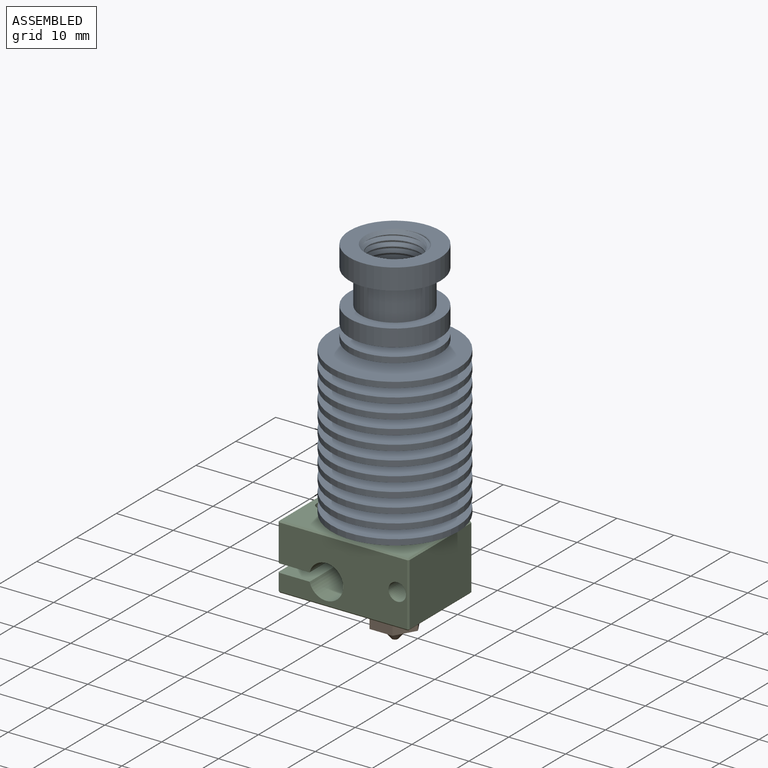
[diagram: assembled view]
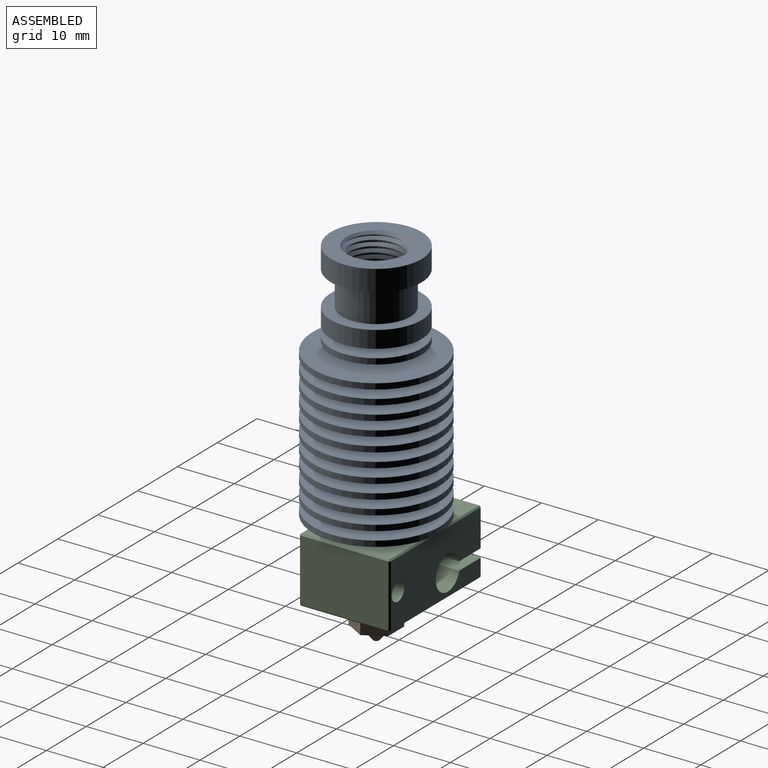
[diagram: assembled view, second angle]
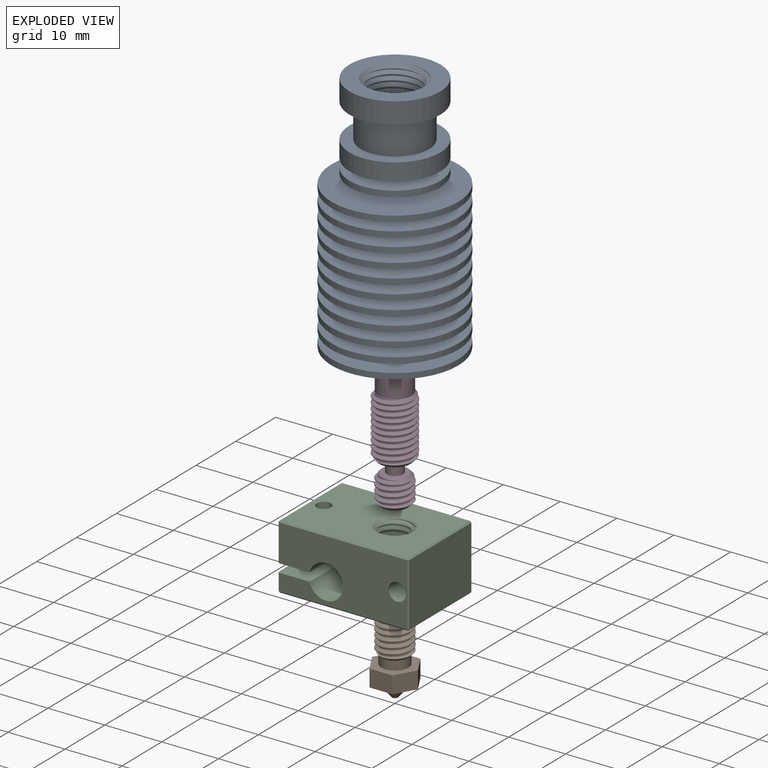
[diagram: exploded view]
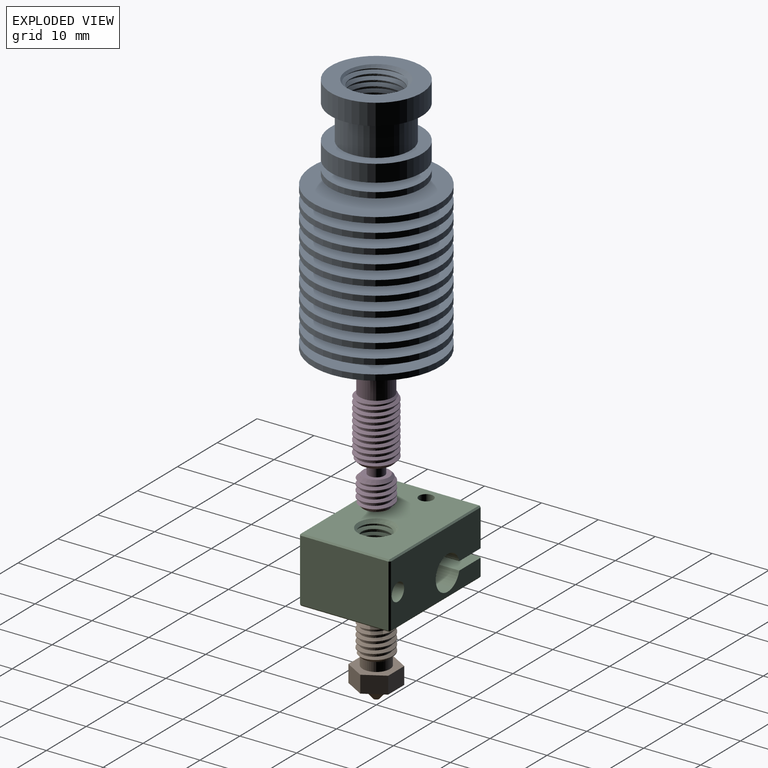
[diagram: exploded view, second angle]
ASSEMBLY  parts=4 mates=3
PART A: 72 faces, bbox 22.3x22.3x43.5 mm
  f0: cylinder r=2.1mm len=17.7mm, axis (0,0,-1), area 233.5mm2, adj f57,f59
  f1: cone r=6mm half-angle=3deg, axis (0,0,-1), area 44.6mm2, adj f39,f43
  f2: cone r=6mm half-angle=3deg, axis (0,0,-1), area 45.9mm2, adj f36,f40
  f3: cone r=6mm half-angle=3deg, axis (0,0,-1), area 47.1mm2, adj f33,f37
  f4: cone r=6mm half-angle=3deg, axis (0,0,-1), area 48.3mm2, adj f30,f34
  f5: cone r=6mm half-angle=3deg, axis (0,0,-1), area 49.6mm2, adj f27,f31
  f6: cone r=6mm half-angle=3deg, axis (0,0,-1), area 50.8mm2, adj f24,f28
  f7: cone r=6mm half-angle=3deg, axis (0,0,-1), area 52.1mm2, adj f21,f25
  f8: cone r=6mm half-angle=3deg, axis (0,0,-1), area 53.3mm2, adj f18,f22
  f9: cone r=6mm half-angle=3deg, axis (0,0,-1), area 54.5mm2, adj f15,f19
  f10: cone r=6mm half-angle=3deg, axis (0,0,-1), area 55.8mm2, adj f12,f16
  f11: cylinder r=11.15mm len=22.3mm, axis (0,0,-1), area 70.1mm2, adj f12,f13
  f12: plane 22.3x22.3mm, normal (0,0,1), area 279.4mm2, adj f10,f11
  f13: plane 22.3x22.3mm, normal (0,0,-1), area 347.4mm2, adj f11,f60
  f14: cylinder r=11.15mm len=22.3mm, axis (0,0,-1), area 70.1mm2, adj f15,f16
  f15: plane 22.3x22.3mm, normal (0,0,1), area 284.3mm2, adj f9,f14
  f16: plane 22.3x22.3mm, normal (0,0,-1), area 282.4mm2, adj f10,f14
  f17: cylinder r=11.15mm len=22.3mm, axis (0,0,-1), area 70.1mm2, adj f18,f19
  f18: plane 22.3x22.3mm, normal (0,0,1), area 289mm2, adj f8,f17
  f19: plane 22.3x22.3mm, normal (0,0,-1), area 287.1mm2, adj f9,f17
  f20: cylinder r=11.15mm len=22.3mm, axis (0,0,-1), area 70.1mm2, adj f21,f22
  f21: plane 22.3x22.3mm, normal (0,0,1), area 293.6mm2, adj f7,f20
  f22: plane 22.3x22.3mm, normal (0,0,-1), area 291.8mm2, adj f8,f20
  f23: cylinder r=11.15mm len=22.3mm, axis (0,0,-1), area 70.1mm2, adj f24,f25
  f24: plane 22.3x22.3mm, normal (0,0,1), area 298.2mm2, adj f6,f23
  f25: plane 22.3x22.3mm, normal (0,0,-1), area 296.4mm2, adj f7,f23
  f26: cylinder r=11.15mm len=22.3mm, axis (0,0,-1), area 70.1mm2, adj f27,f28
  f27: plane 22.3x22.3mm, normal (0,0,1), area 302.6mm2, adj f5,f26
  f28: plane 22.3x22.3mm, normal (0,0,-1), area 300.8mm2, adj f6,f26
  f29: cylinder r=11.15mm len=22.3mm, axis (0,0,-1), area 70.1mm2, adj f30,f31
  f30: plane 22.3x22.3mm, normal (0,0,1), area 306.9mm2, adj f4,f29
  f31: plane 22.3x22.3mm, normal (0,0,-1), area 305.2mm2, adj f5,f29
  f32: cylinder r=11.15mm len=22.3mm, axis (0,0,-1), area 70.1mm2, adj f33,f34
  f33: plane 22.3x22.3mm, normal (0,0,1), area 311.1mm2, adj f3,f32
  f34: plane 22.3x22.3mm, normal (0,0,-1), area 309.4mm2, adj f4,f32
  f35: cylinder r=11.15mm len=22.3mm, axis (0,0,-1), area 70.1mm2, adj f36,f37
  f36: plane 22.3x22.3mm, normal (0,0,1), area 315.2mm2, adj f2,f35
  f37: plane 22.3x22.3mm, normal (0,0,-1), area 313.5mm2, adj f3,f35
  f38: cylinder r=11.15mm len=22.3mm, axis (0,0,-1), area 70.1mm2, adj f39,f40
  f39: plane 22.3x22.3mm, normal (0,0,1), area 319.1mm2, adj f1,f38
  f40: plane 22.3x22.3mm, normal (0,0,-1), area 317.6mm2, adj f2,f38
  f41: cylinder r=11.15mm len=22.3mm, axis (0,0,-1), area 70.1mm2, adj f42,f43
  f42: plane 22.3x22.3mm, normal (0,0,1), area 323mm2, adj f41,f44
  f43: plane 22.3x22.3mm, normal (0,0,-1), area 321.5mm2, adj f1,f41
  f44: cone r=6mm half-angle=3deg, axis (0,0,-1), area 43.4mm2, adj f42,f47
  f45: cylinder r=8mm len=16mm, axis (0,0,-1), area 50.3mm2, adj f46,f47
  f46: plane 16x16mm, normal (0,0,1), area 137.3mm2, adj f45,f48
  f47: plane 16x16mm, normal (0,0,-1), area 135.8mm2, adj f44,f45
  f48: cone r=6mm half-angle=3deg, axis (0,0,-1), area 42.2mm2, adj f46,f51
  f49: cylinder r=8mm len=16mm, axis (0,0,-1), area 150.8mm2, adj f50,f51
  f50: plane 16x16mm, normal (0,0,1), area 88mm2, adj f49,f52
  f51: plane 16x16mm, normal (0,0,-1), area 139.5mm2, adj f48,f49
  f52: cylinder r=6mm len=12mm, axis (0,0,-1), area 226.2mm2, adj f50,f55
  f53: cylinder r=8mm len=16mm, axis (0,0,-1), area 186mm2, adj f54,f55
  f54: plane 16x16mm, normal (0,0,1), area 115.8mm2, adj f53,f66
  f55: plane 16x16mm, normal (0,0,-1), area 88mm2, adj f52,f53
  f56: cylinder r=2.96mm len=14.19mm, axis (0,0,-1), area 63.4mm2, adj f57,f60,f61,f62,f64
  f57: cone r=3.1mm half-angle=45deg, axis (0,0,-1), area 19.3mm2, adj f0,f56,f63
  f58: cylinder r=4.46mm len=8.92mm, axis (0,0,1), area 25.2mm2, adj f59,f66,f67,f68,f70
  f59: cone r=4.6mm half-angle=45deg, axis (0,0,1), area 68.7mm2, adj f0,f58,f69
  f60: cone r=2.96mm half-angle=45deg, axis (0,0,-1), area 13mm2, adj f13,f56,f62,f64,f65
  f61: plane 0.88x0.65mm, normal (0,-1,0), area 0.3mm2, adj f56,f62,f63,f64,f65
  f62: bspline ~15.38x8.33mm, area 228.6mm2, adj f56,f60,f61,f63,f65
  f63: cylinder r=2.96mm len=5.69mm, axis (0,0,-1), area 1.8mm2, adj f57,f61,f62
  f64: bspline ~15.21x8.33mm, area 220.6mm2, adj f56,f60,f61,f65
  f65: cylinder r=3.61mm len=14.9mm, axis (0,0,-1), area 75.8mm2, adj f60,f61,f62,f64
  f66: cone r=4.46mm half-angle=45deg, axis (0,0,1), area 18.6mm2, adj f54,f58,f68,f70,f71
  f67: plane 0.88x0.65mm, normal (0,1,0), area 0.3mm2, adj f58,f68,f69,f70,f71
  f68: bspline ~11.8x10.22mm, area 150.3mm2, adj f58,f66,f67,f69,f71
  f69: cylinder r=4.46mm len=8.57mm, axis (0,0,1), area 2.7mm2, adj f59,f67,f68
  f70: bspline ~11.8x10.22mm, area 137.2mm2, adj f58,f66,f67,f71
  f71: cylinder r=5.11mm len=10.22mm, axis (0,0,1), area 69.9mm2, adj f66,f67,f68,f70
PART B: 21 faces, bbox 8.1x7x13 mm
  f0: cylinder r=0.2mm len=2.25mm, axis (0,0,-1), area 2.8mm2, adj f10,f20
  f1: plane 3.5x3mm, normal (0.87,0.5,0), area 12.1mm2, adj f2,f6,f7,f8
  f2: plane 4.04x3mm, normal (0,1,0), area 12.1mm2, adj f1,f3,f7,f8
  f3: plane 3.5x3mm, normal (-0.87,0.5,0), area 12.1mm2, adj f2,f4,f7,f8
  f4: plane 3.5x3mm, normal (-0.87,-0.5,0), area 12.1mm2, adj f3,f5,f7,f8
  f5: plane 4.04x3mm, normal (0,-1,0), area 12.1mm2, adj f4,f6,f7,f8
  f6: plane 3.5x3mm, normal (0.87,-0.5,0), area 12.1mm2, adj f1,f5,f7,f8
  f7: plane 8.08x7mm, normal (0,0,-1), area 24.3mm2, adj f1,f2,f3,f4,f5,f6,f9
  f8: plane 8.08x7mm, normal (0,0,1), area 24.5mm2, adj f1,f2,f3,f4,f5,f6,f11
  f9: cone r=2.4mm half-angle=40deg, axis (0,0,1), area 26.9mm2, adj f7,f10
  f10: plane 1.02x1.02mm, normal (0,0,-1), area 0.7mm2, adj f0,f9
  f11: cylinder r=2.39mm len=4.77mm, axis (0,0,-1), area 23.8mm2, adj f8,f15
  f12: cylinder r=3mm len=6mm, axis (0,0,-1), area 10.7mm2, adj f14,f15,f16,f18
  f13: plane 4.6x4.6mm, normal (0,0,1), area 13.5mm2, adj f14,f19
  f14: cone r=2.3mm half-angle=45deg, axis (0,0,-1), area 9mm2, adj f12,f13,f16,f17,f18
  f15: cone r=3mm half-angle=45deg, axis (0,0,1), area 7.2mm2, adj f11,f12,f16,f17,f18
  f16: bspline ~6.93x6.15mm, area 55mm2, adj f12,f14,f15,f17
  f17: cylinder r=2.46mm len=5.68mm, axis (0,0,-1), area 21.7mm2, adj f14,f15,f16,f18
  f18: bspline ~6x6mm, area 55.1mm2, adj f12,f14,f15,f17
  f19: cylinder r=1mm len=9.7mm, axis (0,0,1), area 60.9mm2, adj f13,f20
  f20: cone r=1mm half-angle=45deg, axis (0,0,1), area 4.3mm2, adj f0,f19
PART C: 42 faces, bbox 23x16x11.7 mm
  f0: plane 15.5x3mm, normal (-1,0,0), area 46.5mm2, adj f15,f30,f37,f38
  f1: plane 22.5x11mm, normal (0,1,0), area 203.8mm2, adj f3,f14,f15,f18,f24,f29,f36,f37
  f2: plane 22.5x11mm, normal (0,-1,0), area 203.8mm2, adj f3,f14,f15,f18,f20,f22,f27,f30
  f3: cylinder r=3mm len=16mm, axis (0,-1,0), area 277.3mm2, adj f1,f2,f14,f15
  f4: cylinder r=2.46mm len=10mm, axis (0,0,1), area 29.7mm2, adj f9,f10,f11,f13
  f5: plane 15.5x11mm, normal (1,0,0), area 170.5mm2, adj f27,f28,f35,f36
  f6: plane 15.5x6.5mm, normal (-1,0,0), area 100.7mm2, adj f14,f20,f23,f24
  f7: plane 22.5x15.5mm, normal (0,0,1), area 311.5mm2, adj f10,f17,f22,f23,f28,f29
  f8: plane 22.5x15.5mm, normal (0,0,-1), area 306.6mm2, adj f9,f16,f19,f31,f35,f38,f41
  f9: cone r=3.21mm half-angle=45deg, axis (0,0,-1), area 11.6mm2, adj f4,f8,f11,f12,f13
  f10: cone r=2.46mm half-angle=45deg, axis (0,0,1), area 11.6mm2, adj f4,f7,f11,f12,f13
  f11: bspline ~11.48x6.93mm, area 113.1mm2, adj f4,f9,f10,f12
  f12: cylinder r=3mm len=11.08mm, axis (0,0,1), area 70.2mm2, adj f9,f10,f11,f13
  f13: bspline ~11.48x6.93mm, area 113.3mm2, adj f4,f9,f10,f12
  f14: plane 16x5.6mm, normal (0,0,-1), area 84.6mm2, adj f1,f2,f3,f6,f17,f20,f24
  f15: plane 16x5.6mm, normal (0,0,1), area 84.6mm2, adj f0,f1,f2,f3,f16,f30,f37
  f16: cylinder r=1.25mm len=3.25mm, axis (0,0,1), area 25.5mm2, adj f8,f15
  f17: cylinder r=1.25mm len=6.75mm, axis (0,0,1), area 53mm2, adj f7,f14
  f18: cylinder r=1.55mm len=16mm, axis (0,-1,0), area 151.3mm2, adj f1,f2,f19
  f19: cylinder r=1.25mm len=4.83mm, axis (0,0,-1), area 35.4mm2, adj f8,f18
  f20: plane 6.5x0.25mm, normal (-0.71,-0.71,0), area 2.3mm2, adj f2,f6,f14,f21
  f21: plane 0.25x0.25mm, normal (-0.58,-0.58,0.58), area 0.1mm2, adj f20,f22,f23
  f22: plane 22.5x0.25mm, normal (0,-0.71,0.71), area 8mm2, adj f2,f7,f21,f25
  f23: plane 15.5x0.25mm, normal (-0.71,0,0.71), area 5.5mm2, adj f6,f7,f21,f26
  f24: plane 6.5x0.25mm, normal (-0.71,0.71,0), area 2.3mm2, adj f1,f6,f14,f26
  f25: plane 0.25x0.25mm, normal (0.58,-0.58,0.58), area 0.1mm2, adj f22,f27,f28
  f26: plane 0.25x0.25mm, normal (-0.58,0.58,0.58), area 0.1mm2, adj f23,f24,f29
  f27: plane 11x0.25mm, normal (0.71,-0.71,0), area 3.9mm2, adj f2,f5,f25,f32
  f28: plane 15.5x0.25mm, normal (0.71,0,0.71), area 5.5mm2, adj f5,f7,f25,f33
  f29: plane 22.5x0.25mm, normal (0,0.71,0.71), area 8mm2, adj f1,f7,f26,f33
  f30: plane 3x0.25mm, normal (-0.71,-0.71,0), area 1.1mm2, adj f0,f2,f15,f34
  f31: plane 22.5x0.25mm, normal (0,-0.71,-0.71), area 8mm2, adj f2,f8,f32,f34
  f32: plane 0.25x0.25mm, normal (0.58,-0.58,-0.58), area 0.1mm2, adj f27,f31,f35
  f33: plane 0.25x0.25mm, normal (0.58,0.58,0.58), area 0.1mm2, adj f28,f29,f36
  f34: plane 0.25x0.25mm, normal (-0.58,-0.58,-0.58), area 0.1mm2, adj f30,f31,f38
  f35: plane 15.5x0.25mm, normal (0.71,0,-0.71), area 5.5mm2, adj f5,f8,f32,f39
  f36: plane 11x0.25mm, normal (0.71,0.71,0), area 3.9mm2, adj f1,f5,f33,f39
  f37: plane 3x0.25mm, normal (-0.71,0.71,0), area 1.1mm2, adj f0,f1,f15,f40
  f38: plane 15.5x0.25mm, normal (-0.71,0,-0.71), area 5.5mm2, adj f0,f8,f34,f40
  f39: plane 0.25x0.25mm, normal (0.58,0.58,-0.58), area 0.1mm2, adj f35,f36,f41
  f40: plane 0.25x0.25mm, normal (-0.58,0.58,-0.58), area 0.1mm2, adj f37,f38,f41
  f41: plane 22.5x0.25mm, normal (0,0.71,-0.71), area 8mm2, adj f1,f8,f39,f40
PART D: 25 faces, bbox 7x8.1x22.5 mm
  f0: cylinder r=1mm len=16.5mm, axis (0,0,-1), area 103.7mm2, adj f21,f24
  f1: cylinder r=3.5mm len=9.5mm, axis (0,0,-1), area 15.4mm2, adj f12,f13,f17,f19
  f2: cylinder r=3mm len=6mm, axis (0,0,-1), area 8mm2, adj f10,f11,f14,f16
  f3: plane 4.5x4.5mm, normal (0,0,1), area 9.5mm2, adj f5,f11
  f4: plane 4.5x4.5mm, normal (0,0,-1), area 11.4mm2, adj f9,f24
  f5: cylinder r=1.43mm len=2.85mm, axis (0,0,-1), area 17.9mm2, adj f3,f6
  f6: plane 5.5x5.5mm, normal (0,0,-1), area 17.4mm2, adj f5,f12
  f7: plane 5.4x5.4mm, normal (0,0,1), area 6.3mm2, adj f22,f23
  f8: cylinder r=2.9mm len=5.8mm, axis (0,0,-1), area 75.6mm2, adj f13,f23
  f9: cone r=3mm half-angle=45deg, axis (0,0,1), area 8.7mm2, adj f4,f10,f15,f16
  f10: cone r=3mm half-angle=45deg, axis (0,0,1), area 1.3mm2, adj f2,f9,f14,f16
  f11: cone r=2.25mm half-angle=45deg, axis (0,0,-1), area 10mm2, adj f2,f3,f14,f15,f16
  f12: cone r=3.5mm half-angle=45deg, axis (0,0,1), area 11.9mm2, adj f1,f6,f17,f18,f19
  f13: cone r=2.75mm half-angle=45deg, axis (0,0,-1), area 8.2mm2, adj f1,f8,f17,f18,f19
  f14: bspline ~6.93x6mm, area 44.3mm2, adj f2,f10,f11,f15
  f15: cylinder r=2.46mm len=4.92mm, axis (0,0,-1), area 19.7mm2, adj f9,f11,f14,f16
  f16: bspline ~6.93x6mm, area 44.2mm2, adj f2,f9,f10,f11,f15
  f17: bspline ~10.98x8.08mm, area 126.4mm2, adj f1,f12,f13,f18
  f18: cylinder r=2.96mm len=10.58mm, axis (0,0,-1), area 33.4mm2, adj f12,f13,f17,f19
  f19: bspline ~10.98x8.08mm, area 127mm2, adj f1,f12,f13,f18
  f20: cylinder r=2.1mm len=4.3mm, axis (0,0,1), area 56.7mm2, adj f21,f22
  f21: cone r=2.1mm half-angle=45deg, axis (0,0,1), area 15.2mm2, adj f0,f20
  f22: cone r=2.1mm half-angle=45deg, axis (0,0,1), area 3.9mm2, adj f7,f20
  f23: cone r=2.7mm half-angle=45deg, axis (0,0,-1), area 5mm2, adj f7,f8
  f24: cone r=1mm half-angle=45deg, axis (0,0,-1), area 2mm2, adj f0,f4
PLACE A rot(axis=(0,0,1),180deg) t=(0,0,19.91)mm
PLACE B t=(0,0,5.25)mm
PLACE C t=(-3.5,0,6.25)mm
PLACE D t=(0,0,12.75)mm
MATE fastened C.f4 <-> B.f19  axis (0,0,1) through (0,0,12.75)mm
MATE fastened D.f8 <-> A.f0  axis (0,0,1) through (0,0,34.85)mm
MATE fastened C.f4 <-> D.f2  axis (0,0,1) through (0,0,12.75)mm
